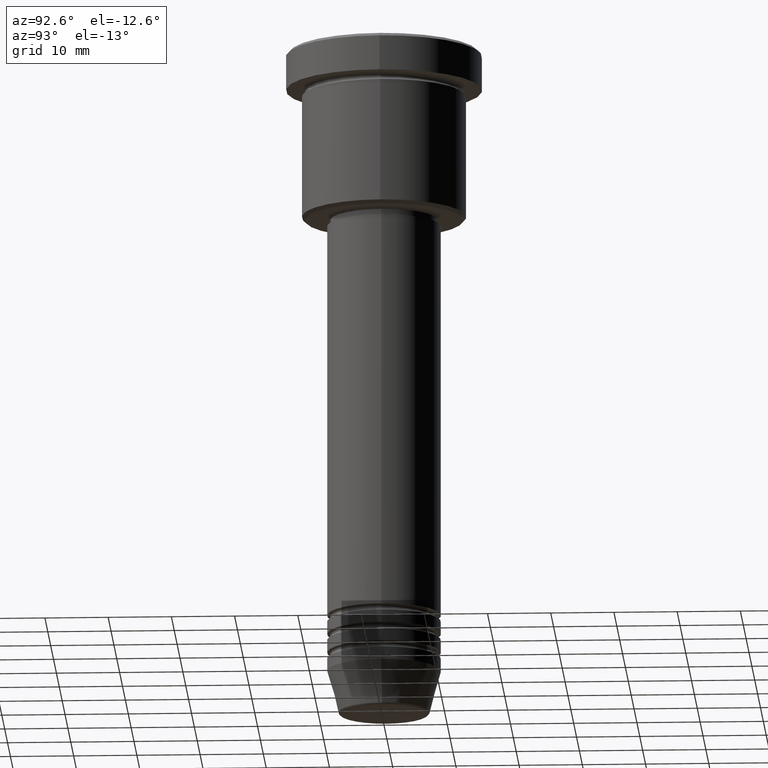
[diagram: clean part render]
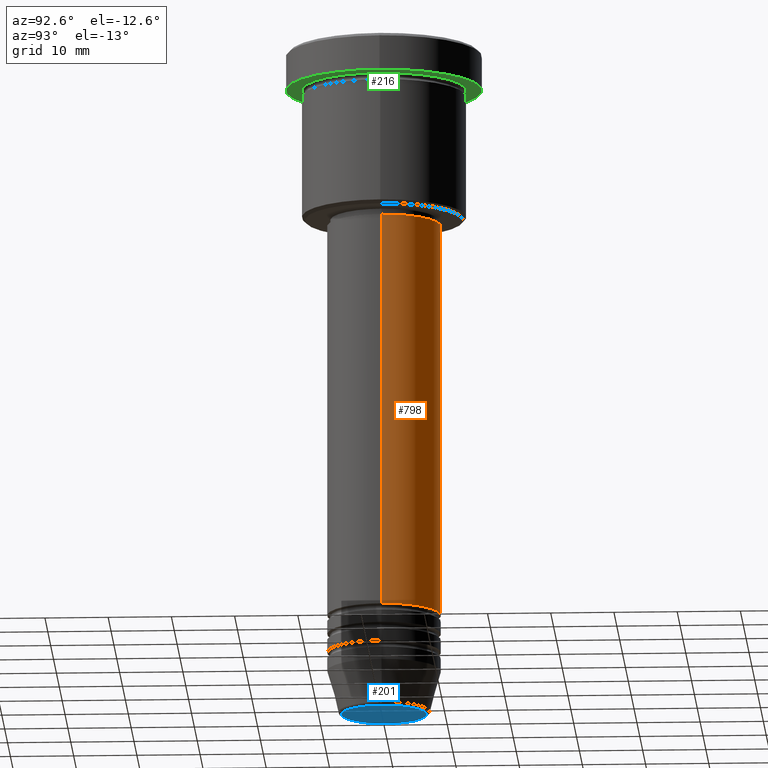
[diagram: same view with three faces highlighted in distinct colors, each labeled with its STEP entity id]
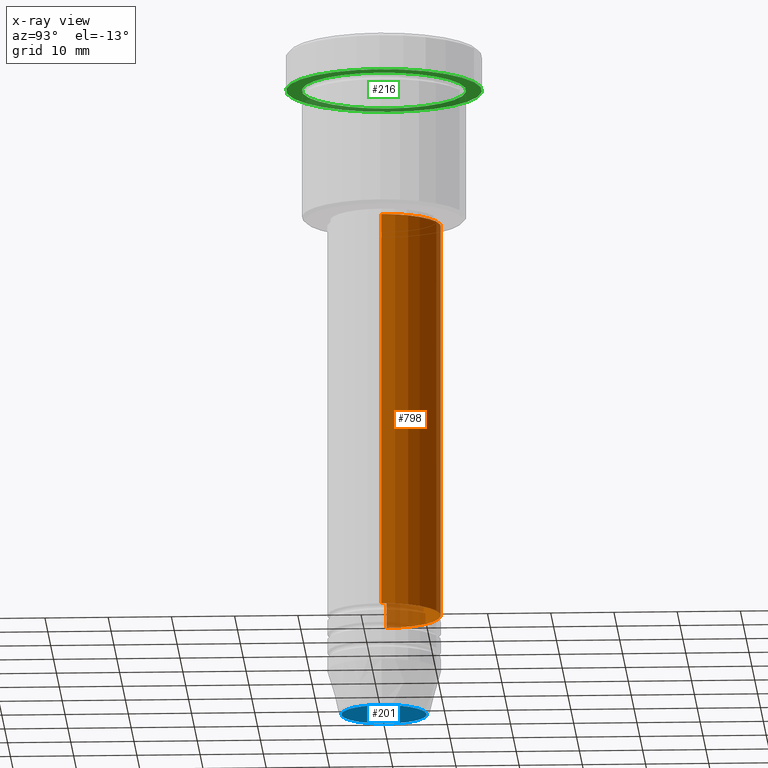
[diagram: x-ray of the same camera — body ghosted, the three highlighted faces saturated]
A machine part, auxiliary view with three faces highlighted in distinct colors.
The next image is the same camera in x-ray (body ghosted, the three faces saturated) — at least one of them is partly hidden behind the body in this view.
Their STEP definitions:

[orange] entity #798 — the highlighted cylindrical surface (partial cylindrical patch) has radius 9 mm, axis along (-0, -0, 1).
#20 = AXIS2_PLACEMENT_3D ( 'NONE', #191, #284, #291 ) ;
#22 = EDGE_LOOP ( 'NONE', ( #1183, #70, #272, #189 ) ) ;
#70 = ORIENTED_EDGE ( 'NONE', *, *, #162, .T. ) ;
#94 = CIRCLE ( 'NONE', #485, 9.000000000000000000 ) ;
#116 = EDGE_CURVE ( 'NONE', #575, #163, #842, .T. ) ;
#119 = CARTESIAN_POINT ( 'NONE',  ( 9.000000000000000000, 0.000000000000000000, -28.00000000000000355 ) ) ;
#162 = EDGE_CURVE ( 'NONE', #163, #393, #498, .T. ) ;
#163 = VERTEX_POINT ( 'NONE', #955 ) ;
#189 = ORIENTED_EDGE ( 'NONE', *, *, #546, .F. ) ;
#191 = CARTESIAN_POINT ( 'NONE',  ( 0.000000000000000000, 0.000000000000000000, 0.000000000000000000 ) ) ;
#272 = ORIENTED_EDGE ( 'NONE', *, *, #979, .F. ) ;
#284 = DIRECTION ( 'NONE',  ( -0.000000000000000000, -0.000000000000000000, 1.000000000000000000 ) ) ;
#291 = DIRECTION ( 'NONE',  ( 1.000000000000000000, 0.000000000000000000, 0.000000000000000000 ) ) ;
#333 = FACE_OUTER_BOUND ( 'NONE', #22, .T. ) ;
#353 = LINE ( 'NONE', #1092, #427 ) ;
#393 = VERTEX_POINT ( 'NONE', #865 ) ;
#399 = CYLINDRICAL_SURFACE ( 'NONE', #20, 9.000000000000000000 ) ;
#427 = VECTOR ( 'NONE', #911, 1000.000000000000000 ) ;
#485 = AXIS2_PLACEMENT_3D ( 'NONE', #1010, #1030, #848 ) ;
#498 = LINE ( 'NONE', #877, #644 ) ;
#521 = DIRECTION ( 'NONE',  ( 1.000000000000000000, 0.000000000000000000, 0.000000000000000000 ) ) ;
#546 = EDGE_CURVE ( 'NONE', #575, #790, #353, .T. ) ;
#575 = VERTEX_POINT ( 'NONE', #1172 ) ;
#644 = VECTOR ( 'NONE', #859, 1000.000000000000000 ) ;
#720 = AXIS2_PLACEMENT_3D ( 'NONE', #786, #766, #521 ) ;
#766 = DIRECTION ( 'NONE',  ( -0.000000000000000000, -0.000000000000000000, 1.000000000000000000 ) ) ;
#786 = CARTESIAN_POINT ( 'NONE',  ( 0.000000000000000000, 0.000000000000000000, -90.99999999999997158 ) ) ;
#790 = VERTEX_POINT ( 'NONE', #119 ) ;
#798 = ADVANCED_FACE ( 'NONE', ( #333 ), #399, .T. ) ;
#842 = CIRCLE ( 'NONE', #720, 9.000000000000000000 ) ;
#848 = DIRECTION ( 'NONE',  ( 1.000000000000000000, 0.000000000000000000, 0.000000000000000000 ) ) ;
#859 = DIRECTION ( 'NONE',  ( -0.000000000000000000, -0.000000000000000000, 1.000000000000000000 ) ) ;
#865 = CARTESIAN_POINT ( 'NONE',  ( -9.000000000000000000, 1.102182119232617714E-15, -28.00000000000000355 ) ) ;
#877 = CARTESIAN_POINT ( 'NONE',  ( -9.000000000000000000, 1.102182119232617714E-15, 0.000000000000000000 ) ) ;
#911 = DIRECTION ( 'NONE',  ( -0.000000000000000000, -0.000000000000000000, 1.000000000000000000 ) ) ;
#955 = CARTESIAN_POINT ( 'NONE',  ( -9.000000000000000000, 1.102182119232617714E-15, -90.99999999999997158 ) ) ;
#979 = EDGE_CURVE ( 'NONE', #790, #393, #94, .T. ) ;
#1010 = CARTESIAN_POINT ( 'NONE',  ( 0.000000000000000000, 0.000000000000000000, -28.00000000000000355 ) ) ;
#1030 = DIRECTION ( 'NONE',  ( -0.000000000000000000, -0.000000000000000000, 1.000000000000000000 ) ) ;
#1092 = CARTESIAN_POINT ( 'NONE',  ( 9.000000000000000000, 0.000000000000000000, 0.000000000000000000 ) ) ;
#1172 = CARTESIAN_POINT ( 'NONE',  ( 9.000000000000000000, 0.000000000000000000, -90.99999999999997158 ) ) ;
#1183 = ORIENTED_EDGE ( 'NONE', *, *, #116, .T. ) ;

[blue] entity #201 — the highlighted planar face has unit normal (0, -0, 1).
#35 = AXIS2_PLACEMENT_3D ( 'NONE', #763, #945, #913 ) ;
#73 = AXIS2_PLACEMENT_3D ( 'NONE', #636, #1176, #981 ) ;
#107 = AXIS2_PLACEMENT_3D ( 'NONE', #325, #695, #514 ) ;
#127 = CIRCLE ( 'NONE', #73, 6.740692158992658278 ) ;
#201 = ADVANCED_FACE ( 'NONE', ( #412 ), #1151, .F. ) ;
#238 = VERTEX_POINT ( 'NONE', #475 ) ;
#243 = CARTESIAN_POINT ( 'NONE',  ( 6.740692158992658278, 0.000000000000000000, -107.0000000000000000 ) ) ;
#325 = CARTESIAN_POINT ( 'NONE',  ( 0.000000000000000000, 0.000000000000000000, -107.0000000000000000 ) ) ;
#357 = VERTEX_POINT ( 'NONE', #243 ) ;
#385 = ORIENTED_EDGE ( 'NONE', *, *, #807, .T. ) ;
#412 = FACE_OUTER_BOUND ( 'NONE', #1044, .T. ) ;
#466 = ORIENTED_EDGE ( 'NONE', *, *, #474, .T. ) ;
#474 = EDGE_CURVE ( 'NONE', #238, #357, #127, .T. ) ;
#475 = CARTESIAN_POINT ( 'NONE',  ( -6.740692158992658278, 8.550696569392689626E-16, -107.0000000000000000 ) ) ;
#509 = CIRCLE ( 'NONE', #35, 6.740692158992658278 ) ;
#514 = DIRECTION ( 'NONE',  ( 1.000000000000000000, 0.000000000000000000, 0.000000000000000000 ) ) ;
#636 = CARTESIAN_POINT ( 'NONE',  ( 0.000000000000000000, 0.000000000000000000, -107.0000000000000000 ) ) ;
#695 = DIRECTION ( 'NONE',  ( 0.000000000000000000, -0.000000000000000000, 1.000000000000000000 ) ) ;
#763 = CARTESIAN_POINT ( 'NONE',  ( 0.000000000000000000, 0.000000000000000000, -107.0000000000000000 ) ) ;
#807 = EDGE_CURVE ( 'NONE', #357, #238, #509, .T. ) ;
#913 = DIRECTION ( 'NONE',  ( 1.000000000000000000, 0.000000000000000000, 0.000000000000000000 ) ) ;
#945 = DIRECTION ( 'NONE',  ( 0.000000000000000000, 0.000000000000000000, -1.000000000000000000 ) ) ;
#981 = DIRECTION ( 'NONE',  ( 1.000000000000000000, 0.000000000000000000, 0.000000000000000000 ) ) ;
#1044 = EDGE_LOOP ( 'NONE', ( #385, #466 ) ) ;
#1151 = PLANE ( 'NONE',  #107 ) ;
#1176 = DIRECTION ( 'NONE',  ( 0.000000000000000000, 0.000000000000000000, -1.000000000000000000 ) ) ;

[green] entity #216 — the highlighted planar face has unit normal (0, 0, -1).
#3 = AXIS2_PLACEMENT_3D ( 'NONE', #457, #174, #738 ) ;
#55 = AXIS2_PLACEMENT_3D ( 'NONE', #721, #897, #78 ) ;
#76 = EDGE_CURVE ( 'NONE', #324, #1029, #566, .T. ) ;
#78 = DIRECTION ( 'NONE',  ( 1.000000000000000000, 0.000000000000000000, 0.000000000000000000 ) ) ;
#174 = DIRECTION ( 'NONE',  ( -0.000000000000000000, -0.000000000000000000, 1.000000000000000000 ) ) ;
#197 = DIRECTION ( 'NONE',  ( 1.000000000000000000, 0.000000000000000000, 0.000000000000000000 ) ) ;
#209 = VERTEX_POINT ( 'NONE', #435 ) ;
#216 = ADVANCED_FACE ( 'NONE', ( #550, #253 ), #1028, .T. ) ;
#253 = FACE_OUTER_BOUND ( 'NONE', #379, .T. ) ;
#265 = AXIS2_PLACEMENT_3D ( 'NONE', #565, #736, #555 ) ;
#273 = EDGE_LOOP ( 'NONE', ( #411, #621 ) ) ;
#324 = VERTEX_POINT ( 'NONE', #464 ) ;
#341 = EDGE_CURVE ( 'NONE', #969, #209, #480, .T. ) ;
#379 = EDGE_LOOP ( 'NONE', ( #669, #1037 ) ) ;
#411 = ORIENTED_EDGE ( 'NONE', *, *, #824, .T. ) ;
#429 = CIRCLE ( 'NONE', #3, 13.00000000000000000 ) ;
#435 = CARTESIAN_POINT ( 'NONE',  ( -13.00000000000000000, 0.000000000000000000, -5.999999999999994671 ) ) ;
#457 = CARTESIAN_POINT ( 'NONE',  ( 0.000000000000000000, 0.000000000000000000, -5.999999999999995559 ) ) ;
#464 = CARTESIAN_POINT ( 'NONE',  ( 15.50000000000000000, 0.000000000000000000, -5.999999999999995559 ) ) ;
#477 = CARTESIAN_POINT ( 'NONE',  ( 13.00000000000000000, 1.592040838891559095E-15, -5.999999999999994671 ) ) ;
#480 = CIRCLE ( 'NONE', #581, 13.00000000000000000 ) ;
#530 = CIRCLE ( 'NONE', #55, 15.50000000000000000 ) ;
#550 = FACE_BOUND ( 'NONE', #273, .T. ) ;
#555 = DIRECTION ( 'NONE',  ( -1.000000000000000000, 0.000000000000000000, -0.000000000000000000 ) ) ;
#565 = CARTESIAN_POINT ( 'NONE',  ( 0.000000000000000000, 15.50000000000000000, -5.999999999999995559 ) ) ;
#566 = CIRCLE ( 'NONE', #831, 15.50000000000000000 ) ;
#577 = CARTESIAN_POINT ( 'NONE',  ( -15.50000000000000000, 1.898202538678397557E-15, -5.999999999999995559 ) ) ;
#581 = AXIS2_PLACEMENT_3D ( 'NONE', #672, #968, #875 ) ;
#621 = ORIENTED_EDGE ( 'NONE', *, *, #341, .T. ) ;
#669 = ORIENTED_EDGE ( 'NONE', *, *, #76, .F. ) ;
#672 = CARTESIAN_POINT ( 'NONE',  ( 0.000000000000000000, 0.000000000000000000, -5.999999999999995559 ) ) ;
#717 = EDGE_CURVE ( 'NONE', #1029, #324, #530, .T. ) ;
#721 = CARTESIAN_POINT ( 'NONE',  ( 0.000000000000000000, 0.000000000000000000, -5.999999999999995559 ) ) ;
#736 = DIRECTION ( 'NONE',  ( 0.000000000000000000, 0.000000000000000000, -1.000000000000000000 ) ) ;
#738 = DIRECTION ( 'NONE',  ( -1.000000000000000000, 0.000000000000000000, 0.000000000000000000 ) ) ;
#824 = EDGE_CURVE ( 'NONE', #209, #969, #429, .T. ) ;
#826 = DIRECTION ( 'NONE',  ( -0.000000000000000000, -0.000000000000000000, 1.000000000000000000 ) ) ;
#831 = AXIS2_PLACEMENT_3D ( 'NONE', #924, #826, #197 ) ;
#875 = DIRECTION ( 'NONE',  ( -1.000000000000000000, 0.000000000000000000, 0.000000000000000000 ) ) ;
#897 = DIRECTION ( 'NONE',  ( -0.000000000000000000, -0.000000000000000000, 1.000000000000000000 ) ) ;
#924 = CARTESIAN_POINT ( 'NONE',  ( 0.000000000000000000, 0.000000000000000000, -5.999999999999995559 ) ) ;
#968 = DIRECTION ( 'NONE',  ( -0.000000000000000000, -0.000000000000000000, 1.000000000000000000 ) ) ;
#969 = VERTEX_POINT ( 'NONE', #477 ) ;
#1028 = PLANE ( 'NONE',  #265 ) ;
#1029 = VERTEX_POINT ( 'NONE', #577 ) ;
#1037 = ORIENTED_EDGE ( 'NONE', *, *, #717, .F. ) ;